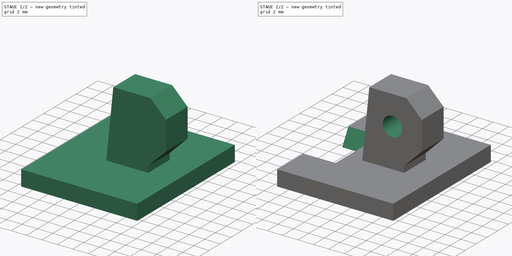
[diagram: build sequence overview — one tinted view per stage of 2, left to right]
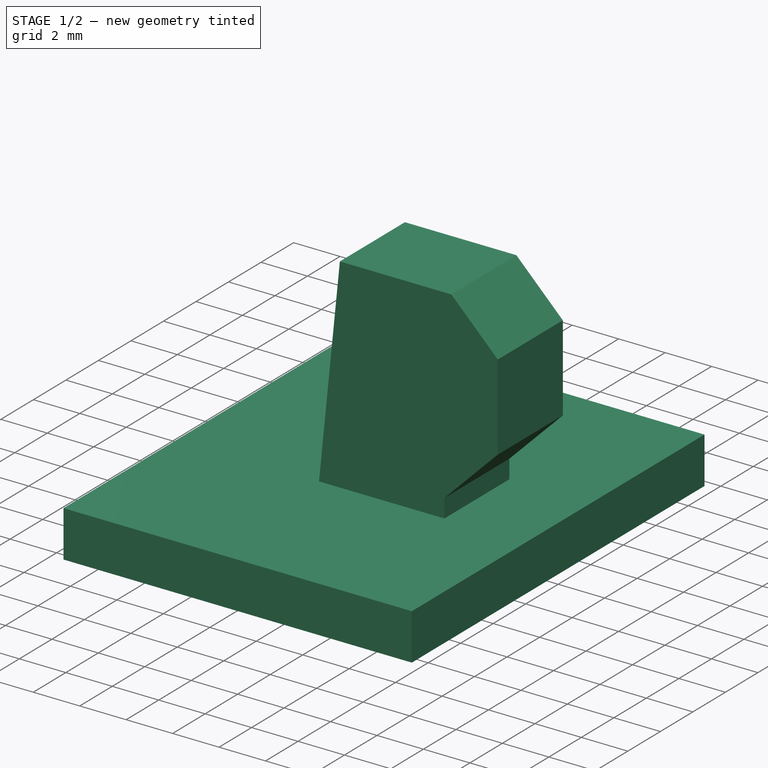
[diagram: stage 1 of 2 — iso view after this stage's code; geometry added in this stage tinted green]
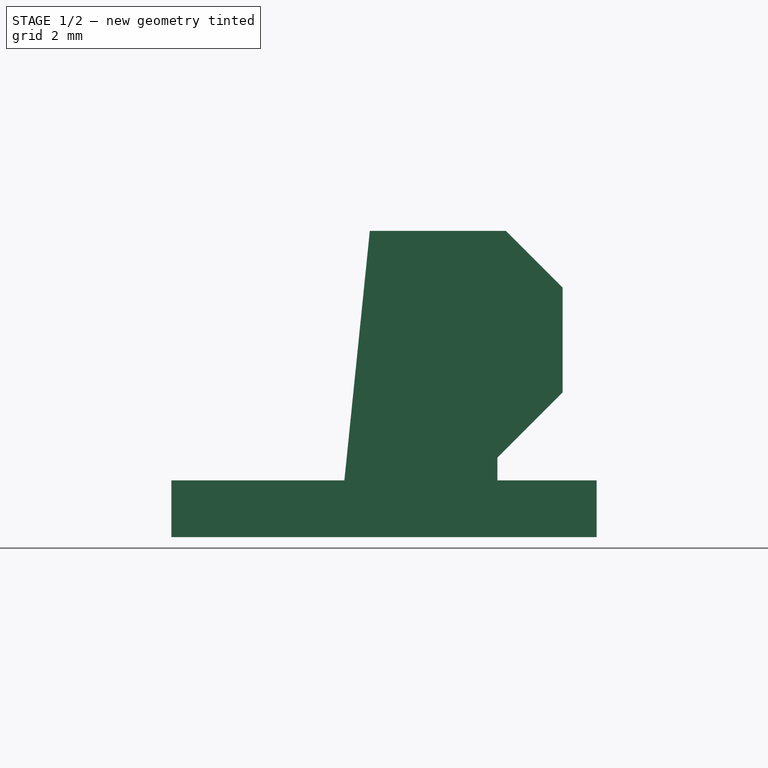
[diagram: stage 1 of 2 — front view after this stage's code; geometry added in this stage tinted green]
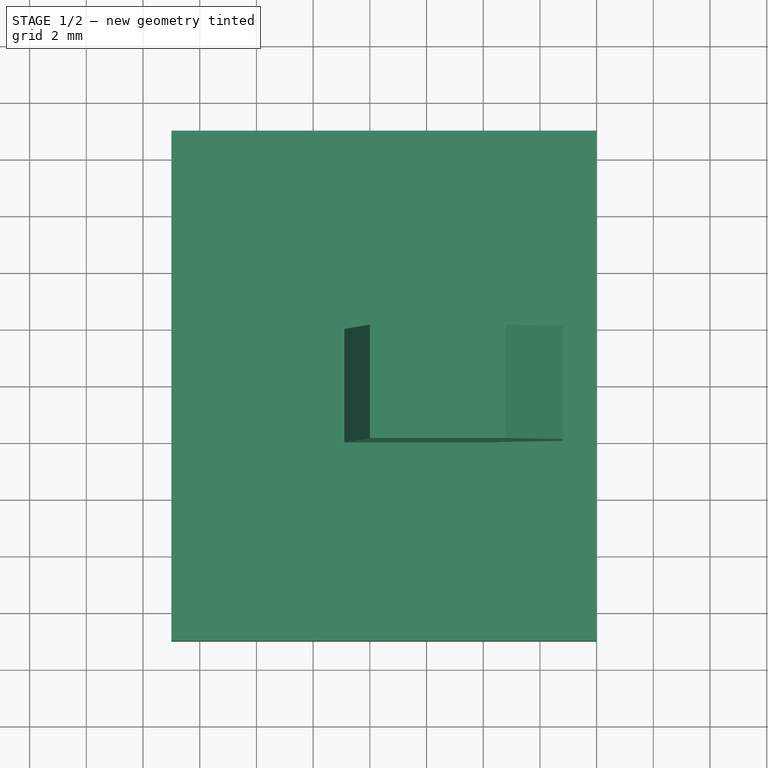
[diagram: stage 1 of 2 — top view after this stage's code; geometry added in this stage tinted green]
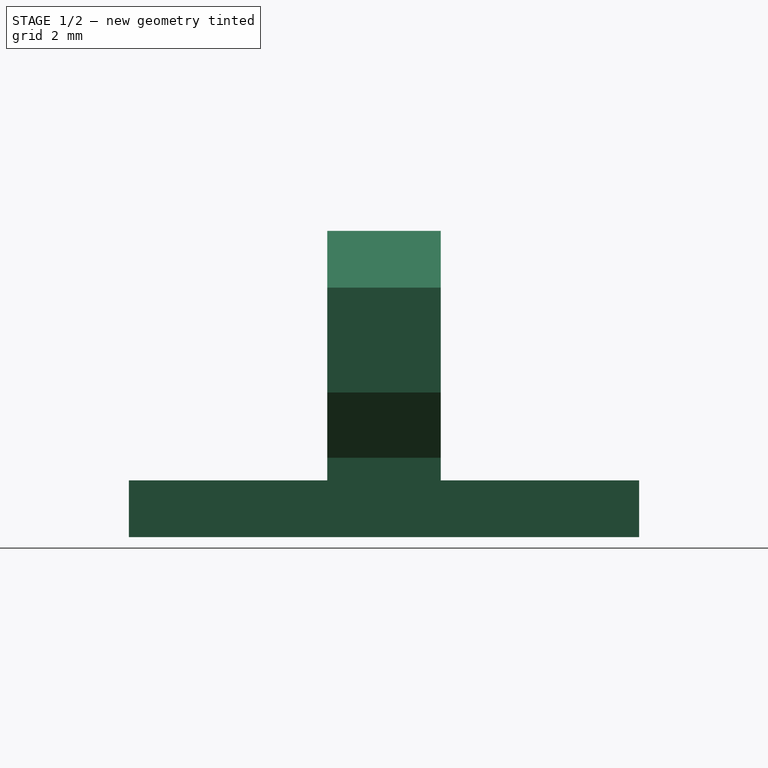
[diagram: stage 1 of 2 — right view after this stage's code; geometry added in this stage tinted green]
FCSTD DOCUMENT  (FreeCAD 1.0R39109 (Git))
Label: RearSightMarker.stl
License: All rights reserved
LicenseURL: http://en.wikipedia.org/wiki/All_rights_reserved
objects: Sketcher::SketchObject×4, PartDesign::Pad×2, PartDesign::Pocket×2, PartDesign::Body×1, App::Part×1
note: 21 computed .brp shape members not serialized (recipe doc carries the construction recipe); baked Part::Feature solids carry a one-line shape summary decoded from their .brp

FEATURE [Sketcher::SketchObject] Sketch004
  ArcFitTolerance = 1e-06
  AttachmentSupport = -> [XY_Plane003]
  FullyConstrained = true
  MakeInternals = false
  MapMode = 5
  sketch-geometry (4):
    g0: LineSegment StartX=-15 StartY=9 StartZ=0 EndX=-15 EndY=-9 EndZ=0
    g1: LineSegment StartX=-15 StartY=-9 StartZ=0 EndX=0 EndY=-9 EndZ=0
    g2: LineSegment StartX=0 StartY=-9 StartZ=0 EndX=0 EndY=9 EndZ=0
    g3: LineSegment StartX=0 StartY=9 StartZ=0 EndX=-15 EndY=9 EndZ=0
  constraints (12):
    c: Coincident(g0,g1)
    c: Coincident(g2,g3)
    c: Coincident(g3,g0)
    c: Vertical(g0)
    c: Vertical(g2)
    c: Horizontal(g1)
    c: Horizontal(g3)
    c: Coincident(g2,g1)
    c: DistanceY(g0,g-1) = 9
    c: DistanceY(g-1,g0) = 9
    c: DistanceX(g0,g-1) = 15
    c: PointOnObject(g2,g-2)
FEATURE [PartDesign::Pad] Pad001
  Direction = (0,0,1)
  Length = 2
  Length2 = 10
  Profile = -> Sketch004
  ReferenceAxis = -> Sketch004 [N_Axis]
  Refine = true
  Reversed = true
  Suppressed = false
  Type = 0
FEATURE [Sketcher::SketchObject] Sketch005
  ArcFitTolerance = 1e-06
  AttachmentSupport = -> [XZ_Plane003]
  FullyConstrained = true
  MakeInternals = false
  MapMode = 5
  Placement = pos=(0,0,0) rot=(1,0,0;1.5708rad)
  sketch-geometry (9):
    g0: LineSegment StartX=-9 StartY=-1 StartZ=0 EndX=-8 EndY=8.8 EndZ=0
    g1: LineSegment StartX=-8 StartY=8.8 StartZ=0 EndX=-3.2 EndY=8.8 EndZ=0
    g2: LineSegment StartX=-3.2 StartY=8.8 StartZ=0 EndX=-1.2 EndY=6.8 EndZ=0
    g3: LineSegment StartX=-1.2 StartY=6.8 StartZ=0 EndX=-1.2 EndY=3.1 EndZ=0
    g4: LineSegment [constr] StartX=-1.2 StartY=3.1 StartZ=0 EndX=-3 EndY=1.3 EndZ=0
    g5: LineSegment StartX=-3.5 StartY=-1 StartZ=0 EndX=-9 EndY=-1 EndZ=0
    g6: Circle [constr] CenterX=-5 CenterY=5 CenterZ=0 NormalX=0 NormalY=0 NormalZ=1 AngleXU=0 Radius=3.5
    g7: LineSegment StartX=-1.2 StartY=3.1 StartZ=0 EndX=-3.5 EndY=0.8 EndZ=0
    g8: LineSegment StartX=-3.5 StartY=0.8 StartZ=0 EndX=-3.5 EndY=-1 EndZ=0
  constraints (27):
    c: Horizontal(g1)
    c: Coincident(g1,g2)
    c: Coincident(g2,g3)
    c: Vertical(g3)
    c: Coincident(g3,g4)
    c: Coincident(g5,g0)
    c: Horizontal(g5)
    c: DistanceY(g5,g-1) = 1
    c: DistanceX(g5,g-1) = 3.5
    c: Diameter(g6) = 7
    c: DistanceX(g6,g-1) = 5
    c: DistanceY(g-1,g6) = 5
    c: DistanceY(g6,g1) = 3.8
    c: Coincident(g0,g1)
    c: DistanceX(g0,g-1) = 8
    c: DistanceX(g6,g2) = 3.8
    c: DistanceY(g4,g6) = 3.7
    c: DistanceX(g6,g4) = 2
    c: Angle(g-1,g4) = 0.785398
    c: DistanceY(g2,g1) = 2
    c: Angle(g3,g2) = 0.785398
    c: Coincident(g7,g3)
    c: Coincident(g8,g7)
    c: Coincident(g8,g5)
    c: PointOnObject(g4,g7)
    c: Vertical(g8)
    c: DistanceX(g0,g-1) = 9
FEATURE [PartDesign::Pad] Pad002
  BaseFeature = -> Pad001
  Direction = (0,-1,2e-16)
  Length = 4
  Length2 = 10
  Midplane = true
  Profile = -> Sketch005
  ReferenceAxis = -> Sketch005 [N_Axis]
  Refine = true
  Suppressed = false
  Type = 0
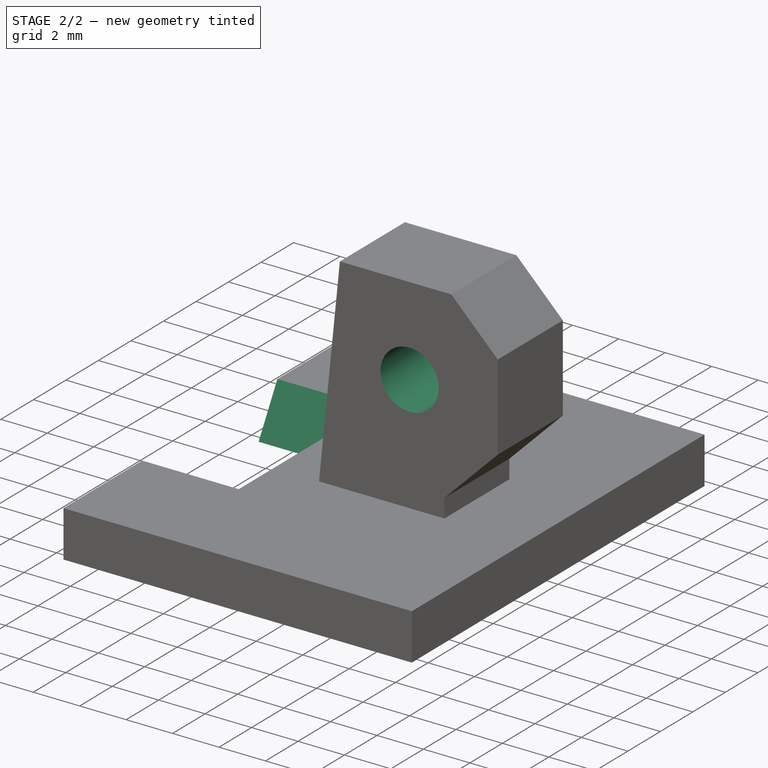
[diagram: stage 2 of 2 — iso view after this stage's code; geometry added in this stage tinted green]
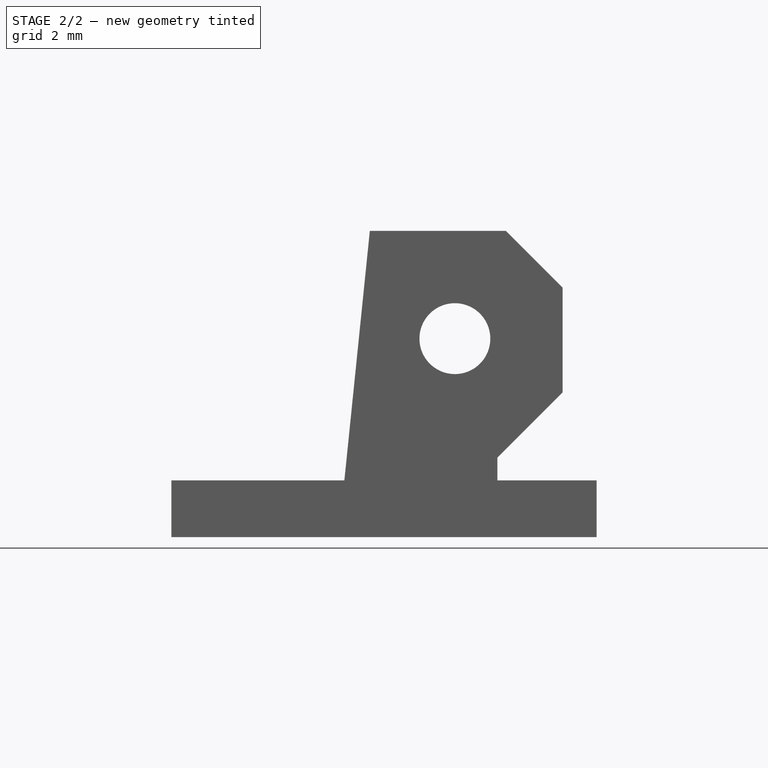
[diagram: stage 2 of 2 — front view after this stage's code; geometry added in this stage tinted green]
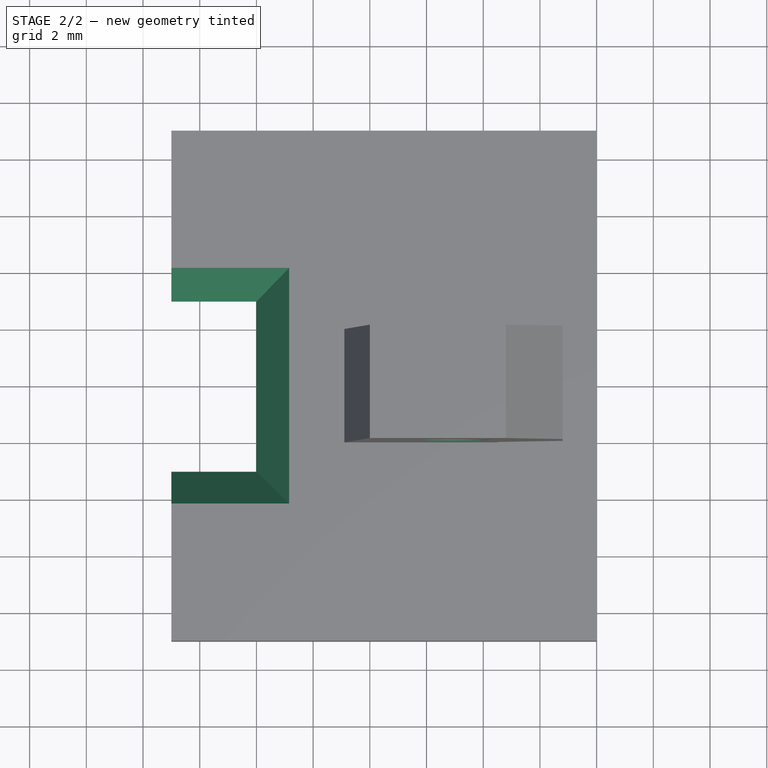
[diagram: stage 2 of 2 — top view after this stage's code; geometry added in this stage tinted green]
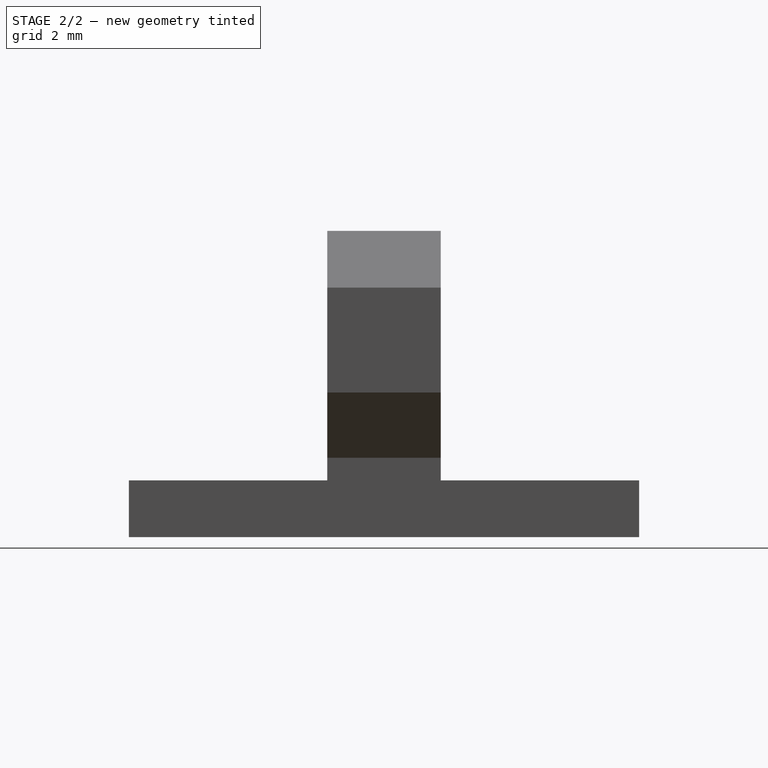
[diagram: stage 2 of 2 — right view after this stage's code; geometry added in this stage tinted green]
FEATURE [Sketcher::SketchObject] Sketch006
  ArcFitTolerance = 1e-06
  AttachmentSupport = -> [XZ_Plane003]
  FullyConstrained = true
  MakeInternals = false
  MapMode = 5
  Placement = pos=(0,0,0) rot=(1,0,0;1.5708rad)
  sketch-geometry (1):
    g0: Circle CenterX=-5 CenterY=5 CenterZ=0 NormalX=0 NormalY=0 NormalZ=1 AngleXU=0 Radius=1.25
  constraints (3):
    c: Diameter(g0) = 2.5
    c: DistanceX(g0,g-1) = 5
    c: DistanceY(g-1,g0) = 5
FEATURE [PartDesign::Pocket] Pocket001
  BaseFeature = -> Pad002
  Direction = (0,1,-2e-16)
  Length = 5
  Length2 = 5
  Midplane = true
  Profile = -> Sketch006
  ReferenceAxis = -> Sketch006 [N_Axis]
  Refine = true
  Suppressed = false
  Type = 1
FEATURE [Sketcher::SketchObject] Sketch015
  ArcFitTolerance = 1e-06
  AttachmentOffset = pos=(0,0,-2) rot=(0,0,1;0rad)
  AttachmentSupport = -> [XY_Plane003]
  FullyConstrained = true
  MakeInternals = false
  MapMode = 5
  Placement = pos=(0,0,-2) rot=(0,0,1;0rad)
  sketch-geometry (4):
    g0: LineSegment StartX=-15 StartY=3 StartZ=0 EndX=-15 EndY=-3 EndZ=0
    g1: LineSegment StartX=-15 StartY=-3 StartZ=0 EndX=-12 EndY=-3 EndZ=0
    g2: LineSegment StartX=-12 StartY=-3 StartZ=0 EndX=-12 EndY=3 EndZ=0
    g3: LineSegment StartX=-12 StartY=3 StartZ=0 EndX=-15 EndY=3 EndZ=0
  constraints (11):
    c: Coincident(g0,g1)
    c: Coincident(g1,g2)
    c: Coincident(g2,g3)
    c: Coincident(g3,g0)
    c: Vertical(g0)
    c: Horizontal(g1)
    c: Horizontal(g3)
    c: DistanceX(g0,g-1) = 15
    c: DistanceY(g2,g2) = 6
    c: Symmetric(g1,g2,g-1)
    c: DistanceX(g1,g1) = 3
FEATURE [PartDesign::Pocket] Pocket006  label="Notch"
  BaseFeature = -> Pocket001
  Direction = (0,0,-1)
  Length = 2
  Length2 = 5
  Profile = -> Sketch015
  ReferenceAxis = -> Sketch015 [N_Axis]
  Refine = true
  Reversed = true
  Suppressed = false
  TaperAngle = 30
  Type = 0
FEATURE [PartDesign::Body] Body001
  AllowCompound = false
  Group = -> [Sketch004,Pad001,Sketch005,Pad002,Sketch006,Pocket001,Sketch015,Pocket006]
  Origin = -> Origin003
  Tip = -> Pocket006
FEATURE [App::Part] Part001  label="RearSightMarker.stl"
  Group = -> [Body001]
  Origin = -> Origin002
  Placement = pos=(-15,0,-3.3e-15) rot=(0,1,0;0rad)
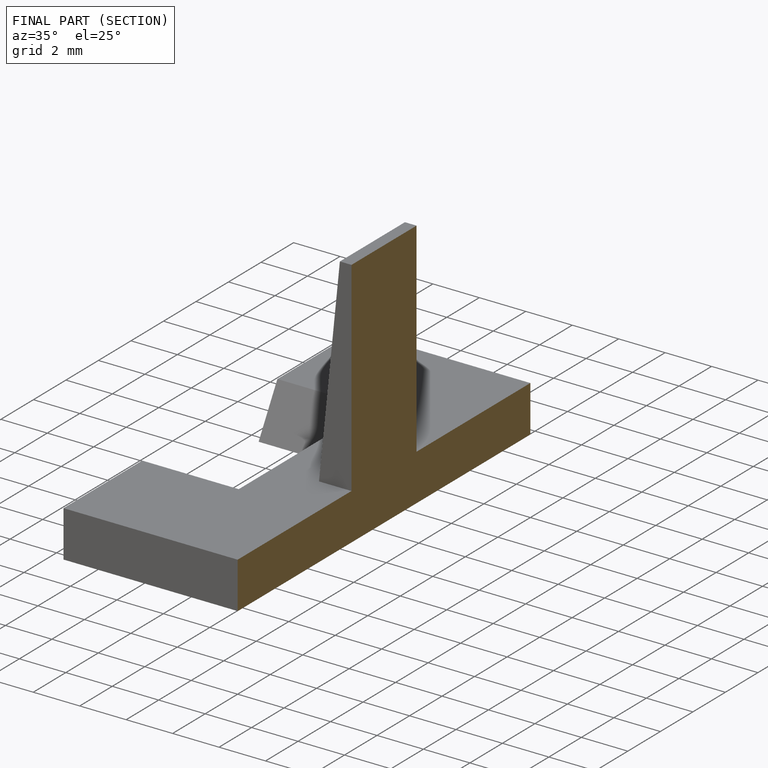
[diagram: finished part — half-section view (interior)]
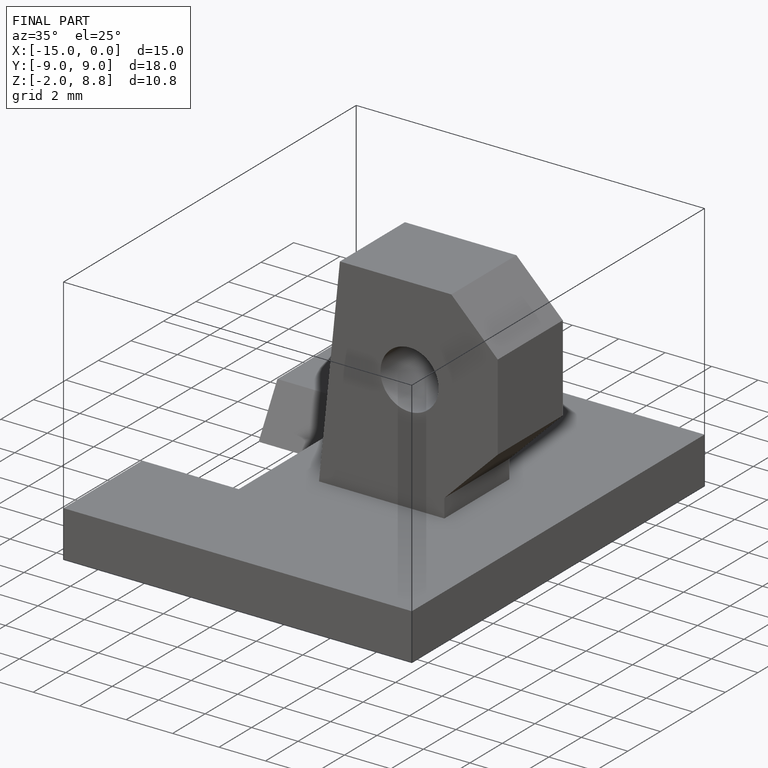
[diagram: finished part — iso view with bounding-box wireframe]
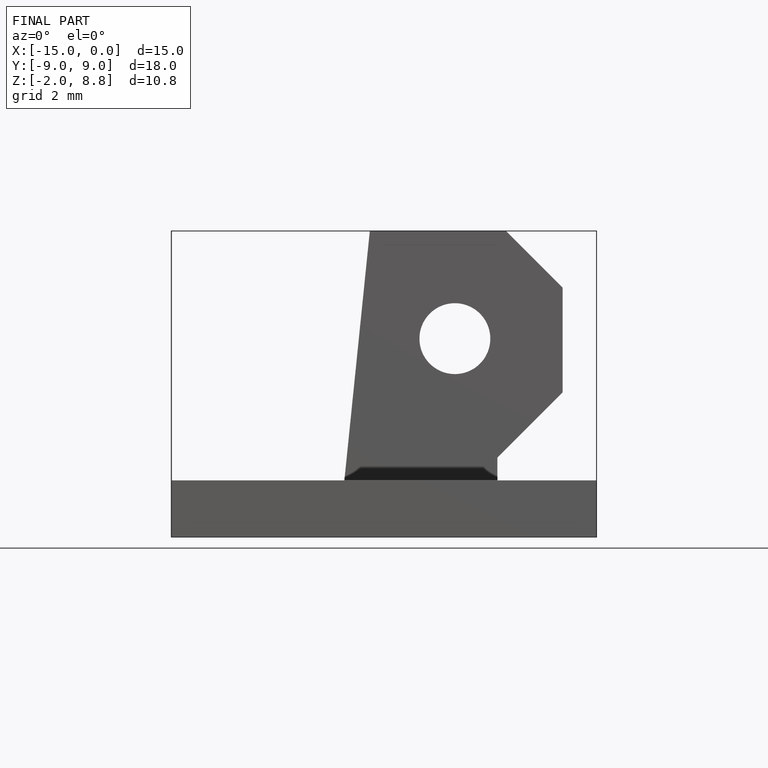
[diagram: finished part — front view with bounding-box wireframe]
